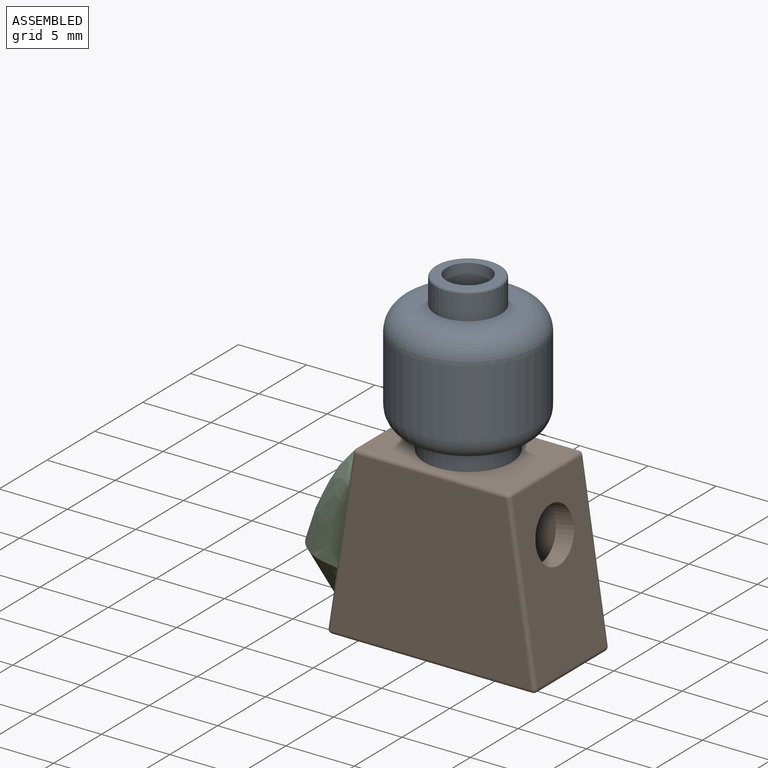
[diagram: assembled view]
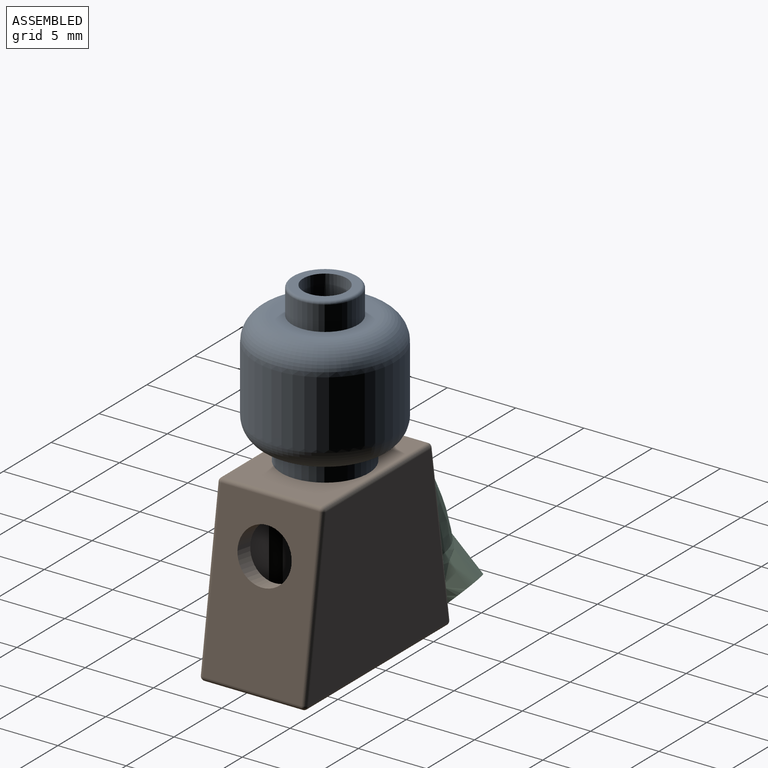
[diagram: assembled view, second angle]
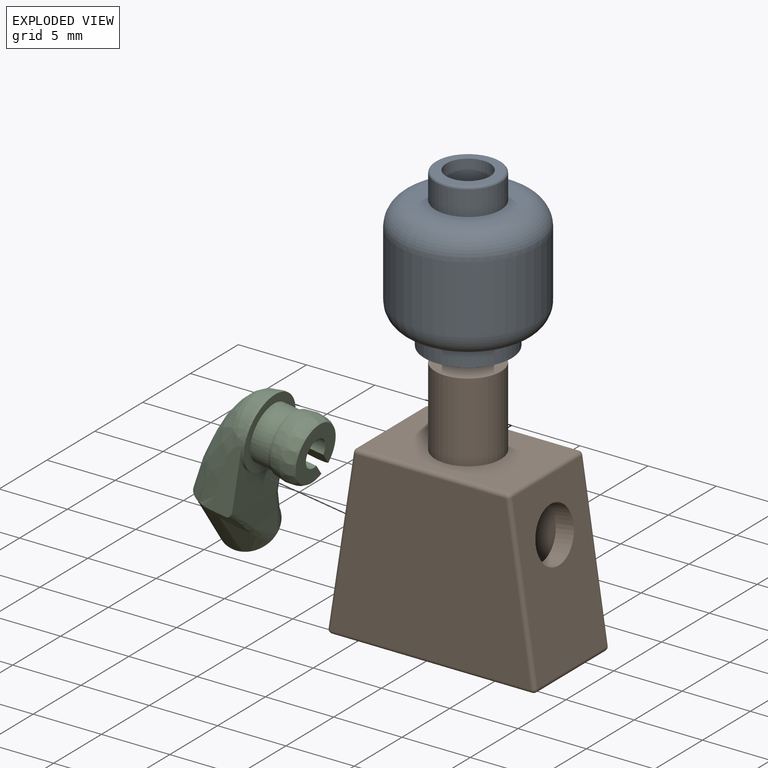
[diagram: exploded view]
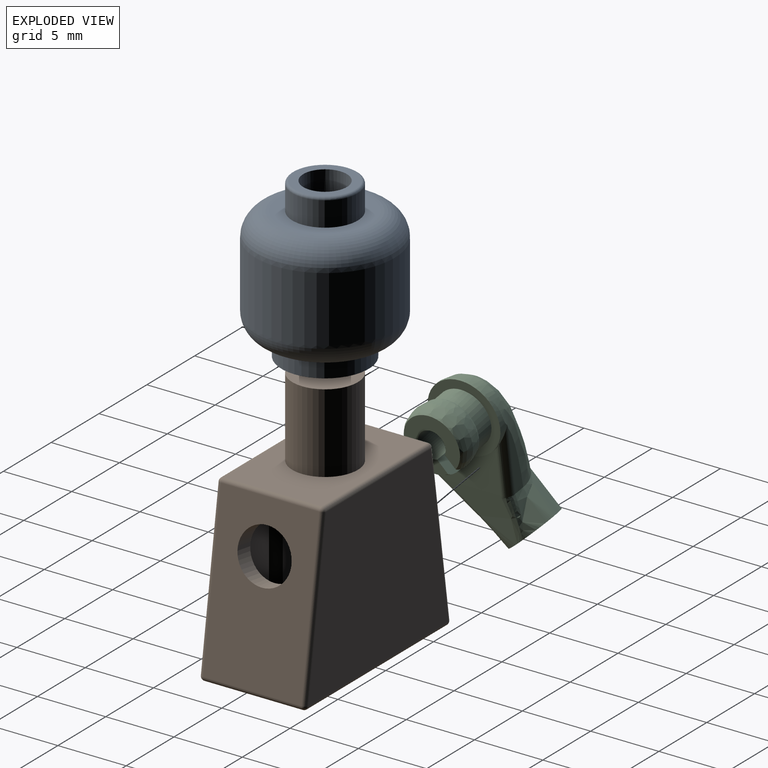
[diagram: exploded view, second angle]
ASSEMBLY  parts=3 mates=2
PART A: 20 faces, bbox 11x11x11.6 mm
  f0: plane 3.08x2.72mm, normal (0,0,1), area 3.5mm2, adj f13,f14,f15,f16,f17,f18,f19
  f1: plane 5x5mm, normal (0,0,-1), area 15.1mm2, adj f2,f13,f14,f15,f16,f17,f18,f19
  f2: cylinder r=2.5mm len=8.6mm, axis (0,0,-1), area 135.1mm2, adj f1,f3
  f3: plane 6.4x6.4mm, normal (0,0,-1), area 12.5mm2, adj f2,f4
  f4: cylinder r=3.2mm len=6.4mm, axis (0,0,-1), area 26.1mm2, adj f3,f5
  f5: plane 6.7x6.7mm, normal (0,0,-1), area 3.1mm2, adj f4,f6
  f6: torus R=3.35mm, axis (0,0,-1), area 77.1mm2, adj f5,f7
  f7: cylinder r=5.1mm len=10.2mm, axis (0,0,-1), area 153.8mm2, adj f6,f8
  f8: torus R=3.35mm, axis (0,0,-1), area 77.1mm2, adj f7,f9
  f9: plane 6.7x6.7mm, normal (0,0,1), area 17.2mm2, adj f8,f10
  f10: cylinder r=2.4mm len=4.8mm, axis (0,0,-1), area 27.1mm2, adj f9,f11
  f11: torus R=2.2mm, axis (0,0,-1), area 4.6mm2, adj f10,f12
  f12: plane 4.4x4.4mm, normal (0,0,1), area 7.2mm2, adj f11,f13
  f13: cylinder r=1.6mm len=3.2mm, axis (0,0,-1), area 27.7mm2, adj f0,f1,f12,f14,f15,f16,f17,f18
  f14: plane 1.32x1mm, normal (0,1,0), area 1.3mm2, adj f0,f1,f13,f15
  f15: plane 1.14x1mm, normal (-0.87,0.5,0), area 1.3mm2, adj f0,f1,f13,f14
  f16: plane 1.14x1mm, normal (-0.87,-0.5,0), area 1.3mm2, adj f0,f1,f13,f17
  f17: plane 1.32x1mm, normal (0,-1,0), area 1.3mm2, adj f0,f1,f13,f16
  f18: plane 1.14x1mm, normal (0.87,-0.5,0), area 1.3mm2, adj f0,f1,f13,f19
  f19: plane 1.14x1mm, normal (0.87,0.5,0), area 1.3mm2, adj f0,f1,f13,f18
PART B: 49 faces, bbox 15.3x7.8x18.6 mm
  f0: plane 11.4x4.08mm, normal (0,-1,0), area 36.6mm2, adj f1,f5,f15,f26
  f1: plane 9.13x5.1mm, normal (0,0,-1), area 42.4mm2, adj f0,f2,f3,f4,f13,f15,f16,f17
  f2: plane 11.4x3.25mm, normal (0,-1,0), area 37mm2, adj f1,f5,f23,f25
  f3: plane 11.4x3.25mm, normal (0,1,0), area 37mm2, adj f1,f5,f19,f22
  f4: plane 11.4x4.08mm, normal (0,1,0), area 36.6mm2, adj f1,f5,f15,f20
  f5: plane 14.65x7.2mm, normal (0,0,-1), area 41.9mm2, adj f0,f2,f3,f4,f15,f16,f17,f18
  f6: cylinder r=2.4mm len=5.8mm, axis (0,0,-1), area 87.5mm2, adj f7,f8
  f7: plane 4.8x4.8mm, normal (0,0,1), area 18.1mm2, adj f6
  f8: plane 10.93x7.2mm, normal (0,0,1), area 60.6mm2, adj f6,f37,f42,f45,f48
  f9: plane 12.15x7.2mm, normal (-0.99,0,0.15), area 75.9mm2, adj f27,f34,f43,f44,f48
  f10: plane 12.15x7.2mm, normal (0.99,0,0.15), area 76.2mm2, adj f28,f29,f32,f36,f37
  f11: plane 14.65x12.15mm, normal (0,-1,0), area 155.4mm2, adj f32,f33,f42,f43
  f12: plane 14.65x12.15mm, normal (0,1,0), area 155.4mm2, adj f35,f36,f44,f45
  f13: cylinder r=1.05mm len=5.8mm, axis (0,0,-1), area 38.3mm2, adj f1,f14
  f14: plane 2.1x2.1mm, normal (0,0,-1), area 3.5mm2, adj f13
  f15: plane 11.4x5.1mm, normal (0.99,0,-0.15), area 46.2mm2, adj f0,f1,f4,f5,f27
  f16: plane 11.4x5.1mm, normal (-0.99,0,-0.15), area 46.6mm2, adj f1,f5,f17,f18,f28
  f17: plane 11.4x4.08mm, normal (0,1,0), area 36.6mm2, adj f1,f5,f16,f21
  f18: plane 11.4x4.08mm, normal (0,-1,0), area 36.6mm2, adj f1,f5,f16,f24
  f19: plane 11.4x0.6mm, normal (1,0,0), area 6.8mm2, adj f1,f3,f5,f20
  f20: plane 11.4x0.6mm, normal (-0.71,0.71,0), area 9.7mm2, adj f1,f4,f5,f19
  f21: plane 11.4x0.6mm, normal (0.71,0.71,0), area 9.7mm2, adj f1,f5,f17,f22
  f22: plane 11.4x0.6mm, normal (-1,0,0), area 6.8mm2, adj f1,f3,f5,f21
  f23: plane 11.4x0.6mm, normal (-1,0,0), area 6.8mm2, adj f1,f2,f5,f24
  f24: plane 11.4x0.6mm, normal (0.71,-0.71,0), area 9.7mm2, adj f1,f5,f18,f23
  f25: plane 11.4x0.6mm, normal (1,0,0), area 6.8mm2, adj f1,f2,f5,f26
  f26: plane 11.4x0.6mm, normal (-0.71,-0.71,0), area 9.7mm2, adj f0,f1,f5,f25
  f27: cylinder r=2mm len=4.16mm, axis (-0.99,0,0.15), area 17mm2, adj f9,f15
  f28: cylinder r=1.97mm len=4.11mm, axis (0.99,0,0.15), area 16.8mm2, adj f10,f16
  f29: cylinder r=0.3mm len=7.2mm, axis (0,1,0), area 3.7mm2, adj f5,f10,f30,f31
  f30: sphere r=0.3mm, area 0.2mm2, adj f29,f32,f33
  f31: sphere r=0.3mm, area 0.2mm2, adj f29,f35,f36
  f32: cylinder r=0.3mm len=12.2mm, axis (0.15,0,-0.99), area 5.8mm2, adj f10,f11,f30,f38
  f33: cylinder r=0.3mm len=14.65mm, axis (-1,0,0), area 6.9mm2, adj f5,f11,f30,f39
  f34: cylinder r=0.3mm len=7.2mm, axis (0,1,0), area 3.7mm2, adj f5,f9,f39,f40
  f35: cylinder r=0.3mm len=14.65mm, axis (1,0,0), area 6.9mm2, adj f5,f12,f31,f40
  f36: cylinder r=0.3mm len=12.2mm, axis (-0.15,0,0.99), area 5.8mm2, adj f10,f12,f31,f41
  f37: cylinder r=0.3mm len=7.2mm, axis (0,1,0), area 3.1mm2, adj f8,f10,f38,f41
  f38: sphere r=0.3mm, area 0.1mm2, adj f32,f37,f42
  f39: sphere r=0.3mm, area 0.2mm2, adj f33,f34,f43
  f40: sphere r=0.3mm, area 0.2mm2, adj f34,f35,f44
  f41: sphere r=0.3mm, area 0.1mm2, adj f36,f37,f45
  f42: cylinder r=0.3mm len=10.93mm, axis (1,0,0), area 5.2mm2, adj f8,f11,f38,f46
  f43: cylinder r=0.3mm len=12.2mm, axis (0.15,0,0.99), area 5.8mm2, adj f9,f11,f39,f46
  f44: cylinder r=0.3mm len=12.2mm, axis (-0.15,0,-0.99), area 5.8mm2, adj f9,f12,f40,f47
  f45: cylinder r=0.3mm len=10.93mm, axis (-1,0,0), area 5.2mm2, adj f8,f12,f41,f47
  f46: sphere r=0.3mm, area 0.1mm2, adj f42,f43,f48
  f47: sphere r=0.3mm, area 0.1mm2, adj f44,f45,f48
  f48: cylinder r=0.3mm len=7.2mm, axis (0,1,0), area 3.1mm2, adj f8,f9,f46,f47
PART C: 29 faces, bbox 9.4x8.2x12.3 mm
  f0: plane 4.19x3.23mm, normal (-0.11,0.66,-0.75), area 8mm2, adj f9,f10,f15,f16,f17,f18
  f1: cylinder r=2.65mm len=5.35mm, axis (0.99,0,-0.15), area 4.1mm2, adj f2,f7,f8,f12
  f2: plane 5.3x5.24mm, normal (0.99,0,-0.15), area 9.5mm2, adj f1,f20
  f3: plane 5.1x2.31mm, normal (0,-1,0), area 5.6mm2, adj f4,f6,f7,f8,f10,f14
  f4: plane 0.1x0.02mm, normal (0.15,0,0.99), area 0mm2, adj f3,f8
  f5: plane 4.62x1.58mm, normal (0,1,0), area 2.7mm2, adj f8,f10,f11,f12,f13
  f6: plane 0.01x0mm, normal (-0.99,0,0.15), area 0mm2, adj f3,f8
  f7: plane 5.08x4.73mm, normal (0.99,0,-0.15), area 13.5mm2, adj f1,f3,f9,f12,f14
  f8: bspline ~7.44x5.3mm, area 62.7mm2, adj f1,f3,f4,f5,f6,f10,f12
  f9: bspline ~5.92x3.57mm, area 8.9mm2, adj f0,f7,f11,f13,f14
  f10: bspline ~6.96x4.83mm, area 43.2mm2, adj f0,f3,f5,f8,f11,f14
  f11: bspline ~3.56x1.45mm, area 1.8mm2, adj f5,f9,f10,f13
  f12: cylinder r=0.6mm len=5mm, axis (-0.15,0,-0.99), area 4mm2, adj f1,f5,f7,f8,f13
  f13: bspline ~0.98x0.75mm, area 0mm2, adj f5,f9,f11,f12
  f14: bspline ~5.83x4.53mm, area 1.7mm2, adj f3,f7,f9,f10
  f15: extruded ~4.38x3.99mm, area 3.4mm2, adj f0,f16,f18,f19
  f16: extruded ~5.7x5.42mm, area 30.5mm2, adj f0,f15,f17,f19
  f17: extruded ~4.48x3.99mm, area 3.4mm2, adj f0,f16,f18,f19
  f18: extruded ~4.59x4.17mm, area 4.2mm2, adj f0,f15,f17,f19
  f19: plane 2.39x1.81mm, normal (-0.11,0.66,-0.75), area 4.5mm2, adj f15,f16,f17,f18
  f20: cylinder r=2mm len=4.17mm, axis (-0.99,0,0.15), area 16.9mm2, adj f2,f21,f26,f27,f28
  f21: bspline ~4.6x4.56mm, area 14.3mm2, adj f20,f23,f26,f27
  f22: plane 4.11x4.06mm, normal (0.99,0,-0.15), area 9.2mm2, adj f23,f24,f26,f27
  f23: bspline ~4.6x4.59mm, area 13.9mm2, adj f21,f22,f26,f27
  f24: cylinder r=1mm len=3.66mm, axis (0.99,0,-0.15), area 19.1mm2, adj f22,f25,f26,f27,f28
  f25: plane 2x1.98mm, normal (0.99,0,-0.15), area 3.1mm2, adj f24
  f26: plane 3.24x1.69mm, normal (0.1,0.76,0.64), area 3.4mm2, adj f20,f21,f22,f23,f24,f28
  f27: plane 3.24x1.69mm, normal (-0.1,-0.76,-0.64), area 3.4mm2, adj f20,f21,f22,f23,f24,f28
  f28: plane 1.3x1.28mm, normal (0.99,0,-0.15), area 0.8mm2, adj f20,f24,f26,f27
PLACE A rot(axis=(-0.7,0.71,0),0deg) t=(11.64,-8.29,-6.35)mm
PLACE B rot(axis=(-0.31,0.31,-0.9),0deg) t=(11.64,-8.29,-6.35)mm
PLACE C rot(axis=(-0.59,0.28,-0.76),0deg) t=(11.64,-8.29,-6.35)mm
MATE revolute A.f2 <-> B.f6  axis (0,0,-1) through (11.64,-8.29,-6.35)mm
MATE revolute C.f24 <-> B.f27  axis (0.99,0,-0.15) through (5.31,-8.29,-10.31)mm
